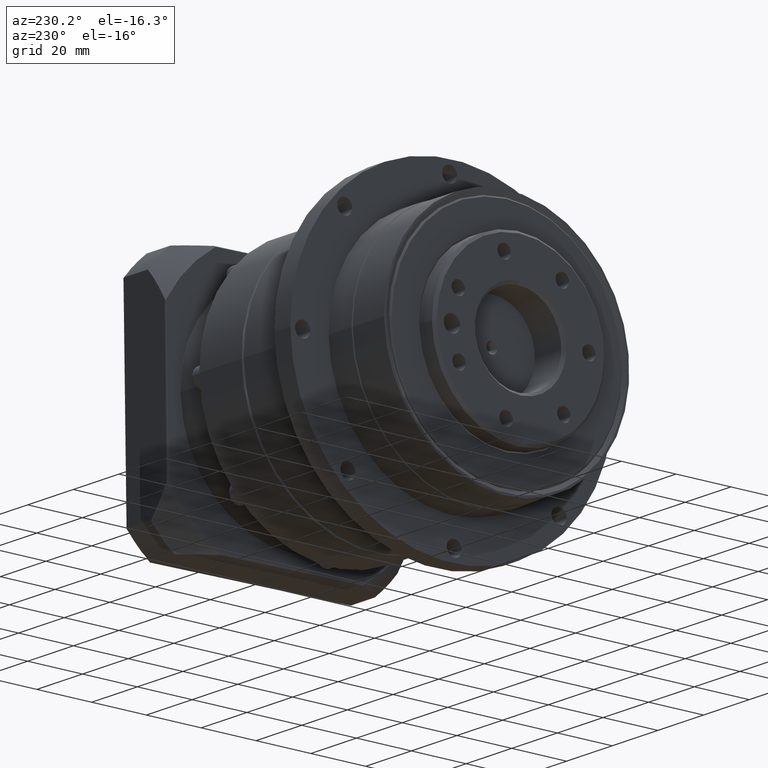
[diagram: clean part render]
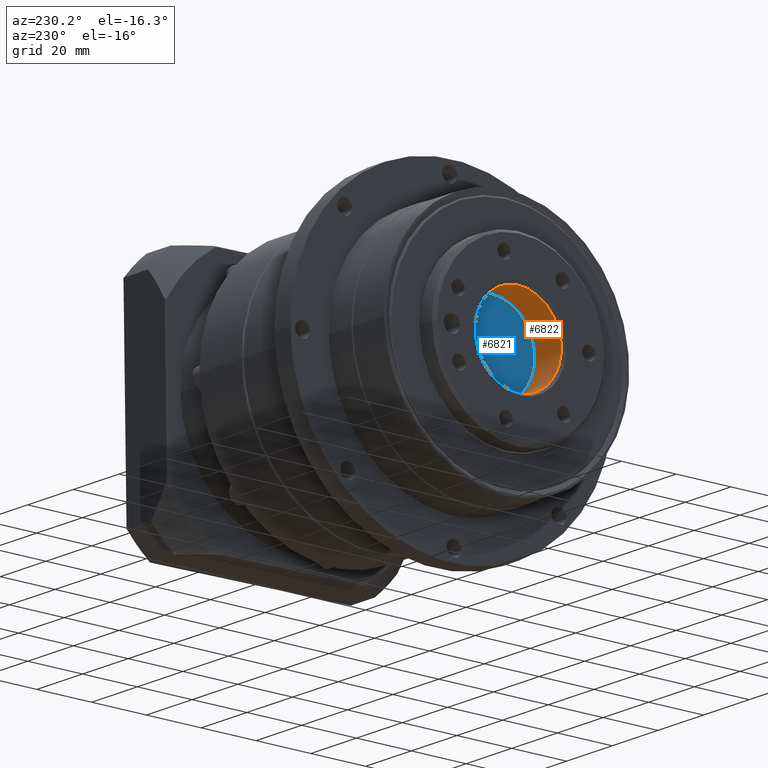
[diagram: same view with the hole feature highlighted: cylindrical wall and planar end face, labeled with their STEP entity ids]
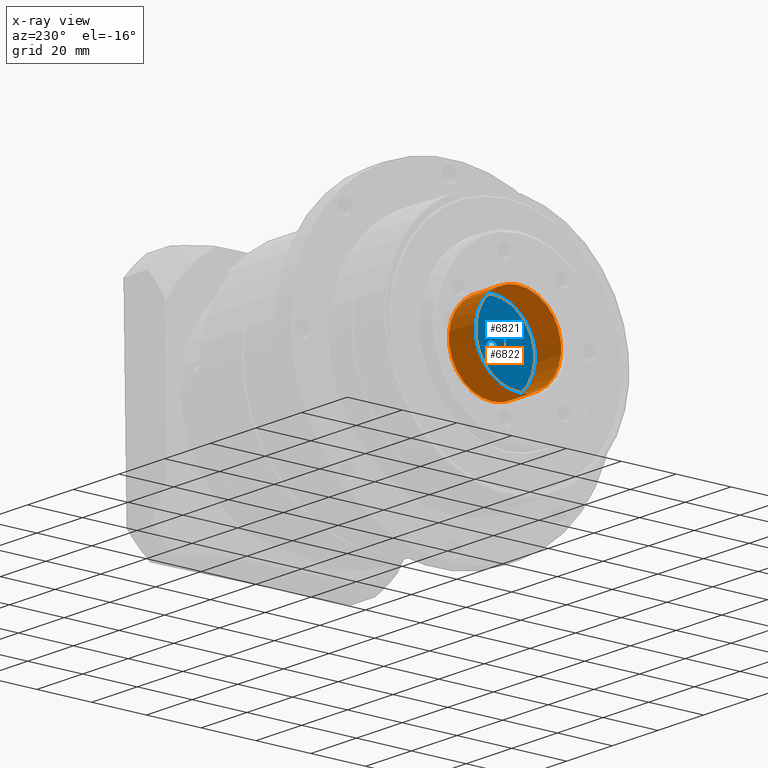
[diagram: x-ray of the same camera — body ghosted, the hole faces saturated]
A machine part, auxiliary view. The highlighted faces form one hole feature of diameter 31.5 mm: the cylindrical wall (entity #6822, orange) and its adjacent planar end face (entity #6821, blue) — they share a circular edge in the B-rep.
The next image is the same camera in x-ray (body ghosted, the hole faces saturated) — the bore reads through the body.
Wall:
#1273=FACE_BOUND('',#2327,.T.);
#1684=FACE_OUTER_BOUND('',#2326,.T.);
#2326=EDGE_LOOP('',(#5540));
#2327=EDGE_LOOP('',(#5541));
#2877=CIRCLE('',#7586,15.75);
#2879=CIRCLE('',#7589,15.75);
#3415=VERTEX_POINT('',#11657);
#3417=VERTEX_POINT('',#11662);
#4178=EDGE_CURVE('',#3415,#3415,#2877,.T.);
#4180=EDGE_CURVE('',#3417,#3417,#2879,.T.);
#5540=ORIENTED_EDGE('',*,*,#4178,.T.);
#5541=ORIENTED_EDGE('',*,*,#4180,.F.);
#6116=CYLINDRICAL_SURFACE('',#7588,15.75);
#6822=ADVANCED_FACE('',(#1684,#1273),#6116,.F.);
#7586=AXIS2_PLACEMENT_3D('',#11658,#9192,#9193);
#7588=AXIS2_PLACEMENT_3D('',#11661,#9196,#9197);
#7589=AXIS2_PLACEMENT_3D('',#11663,#9198,#9199);
#9192=DIRECTION('center_axis',(1.,4.98060940271481E-16,-2.07686166109601E-15));
#9193=DIRECTION('ref_axis',(-2.06939919782249E-15,-0.0145420998487171,-0.999894258075318));
#9196=DIRECTION('center_axis',(1.,4.98060940271481E-16,-2.07686166109601E-15));
#9197=DIRECTION('ref_axis',(-2.06939919782249E-15,-0.0145420998487171,-0.999894258075318));
#9198=DIRECTION('center_axis',(1.,4.98060940271481E-16,-2.07686166109601E-15));
#9199=DIRECTION('ref_axis',(-2.06939919782249E-15,-0.0145420998487171,-0.999894258075318));
#11657=CARTESIAN_POINT('',(-21.219761601598,-94.8430104851392,4.31474868480818));
#11658=CARTESIAN_POINT('Origin',(-21.2197616015981,-95.0720485577565,-11.4335858798781));
#11661=CARTESIAN_POINT('Origin',(-33.7197616015981,-95.0720485577565,-11.433585879878));
#11662=CARTESIAN_POINT('',(-32.719761601598,-94.8430104851392,4.31474868480821));
#11663=CARTESIAN_POINT('Origin',(-32.7197616015981,-95.0720485577565,-11.433585879878));
End face:
#1022=PLANE('',#7585);
#1272=FACE_BOUND('',#2325,.T.);
#1683=FACE_OUTER_BOUND('',#2324,.T.);
#2324=EDGE_LOOP('',(#5538));
#2325=EDGE_LOOP('',(#5539));
#2877=CIRCLE('',#7586,15.75);
#2878=CIRCLE('',#7587,2.);
#3415=VERTEX_POINT('',#11657);
#3416=VERTEX_POINT('',#11659);
#4178=EDGE_CURVE('',#3415,#3415,#2877,.T.);
#4179=EDGE_CURVE('',#3416,#3416,#2878,.T.);
#5538=ORIENTED_EDGE('',*,*,#4178,.F.);
#5539=ORIENTED_EDGE('',*,*,#4179,.T.);
#6821=ADVANCED_FACE('',(#1683,#1272),#1022,.F.);
#7585=AXIS2_PLACEMENT_3D('',#11656,#9190,#9191);
#7586=AXIS2_PLACEMENT_3D('',#11658,#9192,#9193);
#7587=AXIS2_PLACEMENT_3D('',#11660,#9194,#9195);
#9190=DIRECTION('center_axis',(1.,4.98060940271481E-16,-2.07686166109601E-15));
#9191=DIRECTION('ref_axis',(-2.1316282072803E-15,-0.0145420998487168,-0.999894258075318));
#9192=DIRECTION('center_axis',(1.,4.98060940271481E-16,-2.07686166109601E-15));
#9193=DIRECTION('ref_axis',(-2.06939919782249E-15,-0.0145420998487171,-0.999894258075318));
#9194=DIRECTION('center_axis',(1.,4.98060940271481E-16,-2.07686166109601E-15));
#9195=DIRECTION('ref_axis',(2.06939919782249E-15,0.0145420998487171,0.999894258075318));
#11656=CARTESIAN_POINT('Origin',(-21.2197616015981,-95.0720485577565,-11.4335858798781));
#11657=CARTESIAN_POINT('',(-21.219761601598,-94.8430104851392,4.31474868480818));
#11658=CARTESIAN_POINT('Origin',(-21.2197616015981,-95.0720485577565,-11.4335858798781));
#11659=CARTESIAN_POINT('',(-21.2197616015981,-95.0429643580591,-9.43379736372744));
#11660=CARTESIAN_POINT('Origin',(-21.2197616015981,-95.0720485577565,-11.4335858798781));